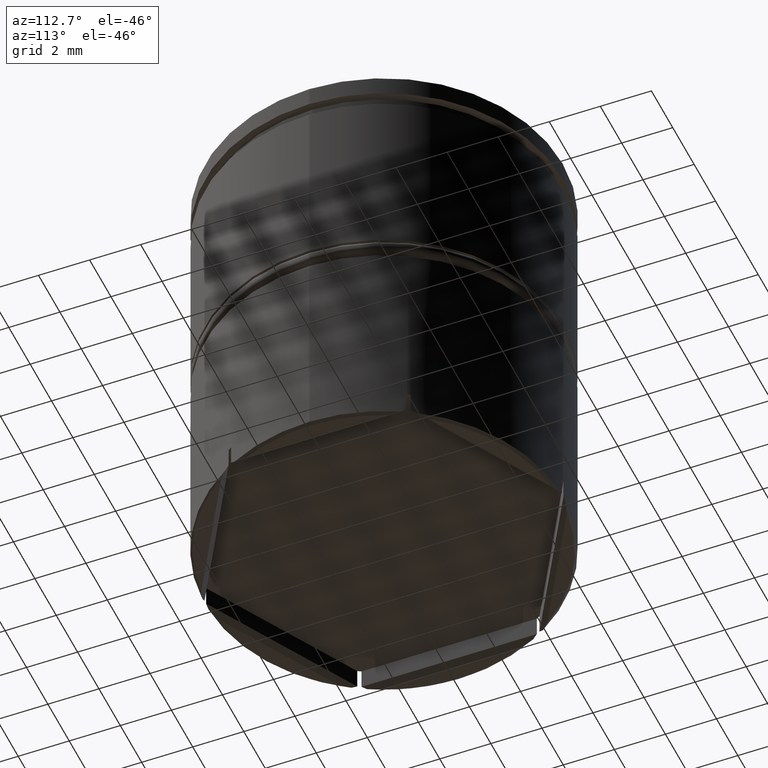
[diagram: clean part render]
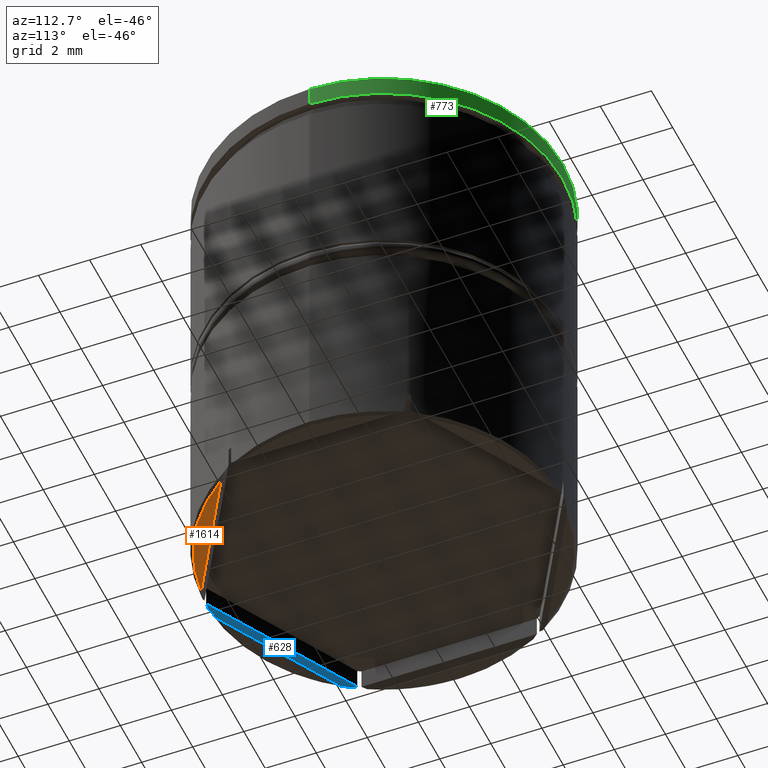
[diagram: same view with three faces highlighted in distinct colors, each labeled with its STEP entity id]
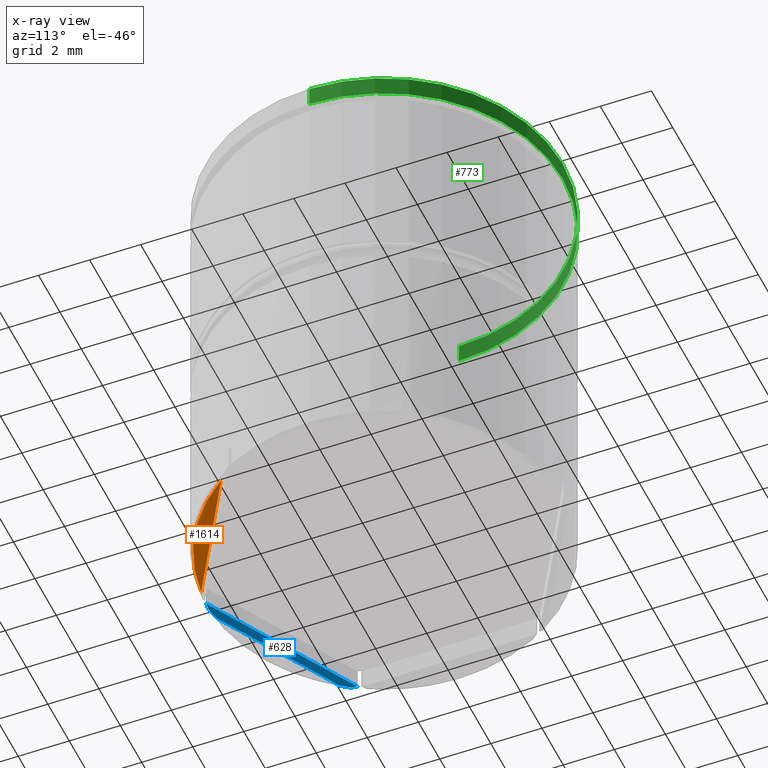
[diagram: x-ray of the same camera — body ghosted, the three highlighted faces saturated]
A machine part, auxiliary view with three faces highlighted in distinct colors.
The next image is the same camera in x-ray (body ghosted, the three faces saturated) — at least one of them is partly hidden behind the body in this view.
Their STEP definitions:

[orange] entity #1614 — the highlighted planar face has unit normal (0, 0, -1).
#26 = EDGE_CURVE ( 'NONE', #227, #977, #1248, .T. ) ;
#98 = DIRECTION ( 'NONE',  ( 0.8660254037844387076, 0.4999999999999998890, 0.000000000000000000 ) ) ;
#108 = DIRECTION ( 'NONE',  ( 0.000000000000000000, 0.000000000000000000, -1.000000000000000000 ) ) ;
#227 = VERTEX_POINT ( 'NONE', #1267 ) ;
#313 = DIRECTION ( 'NONE',  ( -1.000000000000000000, 0.000000000000000000, 0.000000000000000000 ) ) ;
#382 = ORIENTED_EDGE ( 'NONE', *, *, #749, .T. ) ;
#426 = FACE_OUTER_BOUND ( 'NONE', #772, .T. ) ;
#567 = AXIS2_PLACEMENT_3D ( 'NONE', #1581, #108, #1475 ) ;
#749 = EDGE_CURVE ( 'NONE', #977, #227, #1258, .T. ) ;
#772 = EDGE_LOOP ( 'NONE', ( #382, #895 ) ) ;
#838 = DIRECTION ( 'NONE',  ( 0.000000000000000000, 0.000000000000000000, -1.000000000000000000 ) ) ;
#895 = ORIENTED_EDGE ( 'NONE', *, *, #26, .T. ) ;
#977 = VERTEX_POINT ( 'NONE', #1609 ) ;
#1079 = PLANE ( 'NONE',  #567 ) ;
#1205 = CARTESIAN_POINT ( 'NONE',  ( 0.000000000000000000, 0.000000000000000000, -17.50000000000000000 ) ) ;
#1224 = CARTESIAN_POINT ( 'NONE',  ( 5.942848008753788491, -3.843508494182256374, -17.50000000000000000 ) ) ;
#1248 = LINE ( 'NONE', #1224, #1257 ) ;
#1257 = VECTOR ( 'NONE', #98, 1000.000000000000000 ) ;
#1258 = CIRCLE ( 'NONE', #1287, 6.900000000000003908 ) ;
#1267 = CARTESIAN_POINT ( 'NONE',  ( 0.7127884786092059111, -6.863084771788997784, -17.50000000000000000 ) ) ;
#1287 = AXIS2_PLACEMENT_3D ( 'NONE', #1205, #838, #313 ) ;
#1475 = DIRECTION ( 'NONE',  ( -1.000000000000000000, 0.000000000000000000, -0.000000000000000000 ) ) ;
#1581 = CARTESIAN_POINT ( 'NONE',  ( 0.000000000000000000, 7.000000000000000888, -17.50000000000000000 ) ) ;
#1609 = CARTESIAN_POINT ( 'NONE',  ( 5.587211521390793578, -4.048835315894932840, -17.50000000000000000 ) ) ;
#1614 = ADVANCED_FACE ( 'NONE', ( #426 ), #1079, .T. ) ;

[blue] entity #628 — the highlighted planar face has unit normal (0.3536, 0.6124, -0.7071).
#5 = CARTESIAN_POINT ( 'NONE',  ( -6.023634140239850332, -3.565926491746141735, -17.30000000000000071 ) ) ;
#65 = CARTESIAN_POINT ( 'NONE',  ( -0.5706972395900390405, -6.909156228625821683, -17.46885343250046674 ) ) ;
#118 = CARTESIAN_POINT ( 'NONE',  ( -5.587211521390797131, -4.048835315894931064, -17.50000000000000000 ) ) ;
#160 = VERTEX_POINT ( 'NONE', #1404 ) ;
#168 = CARTESIAN_POINT ( 'NONE',  ( -0.2857505441059412510, -6.994165184390713108, -17.39999999999999858 ) ) ;
#185 = EDGE_CURVE ( 'NONE', #1230, #1260, #239, .T. ) ;
#239 = B_SPLINE_CURVE_WITH_KNOTS ( 'NONE', 3,
 ( #792, #651, #1296, #118 ),
 .UNSPECIFIED., .F., .F.,
 ( 4, 4 ),
 ( 0.000000000000000000, 0.0004577591856780710827 ),
 .UNSPECIFIED. ) ;
#258 = CARTESIAN_POINT ( 'NONE',  ( -5.988064803512614276, -3.626010924656295042, -17.33424997690855918 ) ) ;
#270 = VECTOR ( 'NONE', #1134, 1000.000000000000114 ) ;
#285 = CARTESIAN_POINT ( 'NONE',  ( -5.951600521272996325, -3.685556477925193697, -17.36758579760201471 ) ) ;
#286 = CARTESIAN_POINT ( 'NONE',  ( -0.07636585976015554389, -6.999583434424017092, -17.30000000000000071 ) ) ;
#307 = EDGE_CURVE ( 'NONE', #556, #1230, #1289, .T. ) ;
#327 = ORIENTED_EDGE ( 'NONE', *, *, #943, .F. ) ;
#355 = EDGE_CURVE ( 'NONE', #1127, #1456, #1073, .T. ) ;
#358 = LINE ( 'NONE', #1147, #371 ) ;
#371 = VECTOR ( 'NONE', #1254, 1000.000000000000114 ) ;
#385 = CARTESIAN_POINT ( 'NONE',  ( -0.1461851733959461941, -6.998821701677545803, -17.33424997690855562 ) ) ;
#394 = DIRECTION ( 'NONE',  ( 0.3535533905932776721, 0.6123724356958011317, -0.7071067811865398012 ) ) ;
#404 = CARTESIAN_POINT ( 'NONE',  ( 4.363473247675550039E-16, -7.043673284113437738, -17.30000000000000071 ) ) ;
#515 = CARTESIAN_POINT ( 'NONE',  ( -5.914249455894059260, -3.744549822536325401, -17.39999999999999858 ) ) ;
#540 = ORIENTED_EDGE ( 'NONE', *, *, #307, .F. ) ;
#556 = VERTEX_POINT ( 'NONE', #633 ) ;
#557 = B_SPLINE_CURVE_WITH_KNOTS ( 'NONE', 3,
 ( #811, #65, #701, #168 ),
 .UNSPECIFIED., .F., .F.,
 ( 4, 4 ),
 ( 3.252606517456513302E-19, 0.0004577591856780709200 ),
 .UNSPECIFIED. ) ;
#628 = ADVANCED_FACE ( 'NONE', ( #1062 ), #1044, .T. ) ;
#629 = LINE ( 'NONE', #1109, #270 ) ;
#633 = CARTESIAN_POINT ( 'NONE',  ( -6.023634140239850332, -3.565926491746141735, -17.30000000000000071 ) ) ;
#643 = CARTESIAN_POINT ( 'NONE',  ( -0.2857505441059412510, -6.994165184390713108, -17.39999999999999858 ) ) ;
#651 = CARTESIAN_POINT ( 'NONE',  ( -5.807190721710114190, -3.847323924776218096, -17.43547561629891263 ) ) ;
#678 = CARTESIAN_POINT ( 'NONE',  ( -0.2857505441059412510, -6.994165184390713108, -17.39999999999999858 ) ) ;
#701 = CARTESIAN_POINT ( 'NONE',  ( -0.4282848945887998138, -6.952836652010356389, -17.43547561629891263 ) ) ;
#792 = CARTESIAN_POINT ( 'NONE',  ( -5.914249455894059260, -3.744549822536325401, -17.39999999999999858 ) ) ;
#811 = CARTESIAN_POINT ( 'NONE',  ( -0.7127884786092052449, -6.863084771788998673, -17.50000000000000000 ) ) ;
#854 = CARTESIAN_POINT ( 'NONE',  ( -5.914249455894059260, -3.744549822536325401, -17.39999999999999858 ) ) ;
#925 = DIRECTION ( 'NONE',  ( 0.8660254037844385966, -0.5000000000000001110, 0.000000000000000000 ) ) ;
#926 = CARTESIAN_POINT ( 'NONE',  ( -0.2159852763290208699, -6.997015483561718874, -17.36758579760201471 ) ) ;
#943 = EDGE_CURVE ( 'NONE', #1260, #160, #629, .T. ) ;
#956 = EDGE_LOOP ( 'NONE', ( #1451, #327, #1357, #540, #1087, #1610 ) ) ;
#1044 = PLANE ( 'NONE',  #1208 ) ;
#1062 = FACE_OUTER_BOUND ( 'NONE', #956, .T. ) ;
#1073 =( BOUNDED_CURVE ( )  B_SPLINE_CURVE ( 3, ( #643, #926, #385, #1300 ),
 .UNSPECIFIED., .F., .T. ) 
 B_SPLINE_CURVE_WITH_KNOTS ( ( 4, 4 ),
 ( 3.624358576915527319, 3.654281804241773290 ),
 .UNSPECIFIED. ) 
 CURVE ( )  GEOMETRIC_REPRESENTATION_ITEM ( )  RATIONAL_B_SPLINE_CURVE ( ( 1.000000000000000000, 0.9999253847640983128, 0.9999253847640983128, 1.000000000000000000 ) ) 
 REPRESENTATION_ITEM ( '' )  );
#1087 = ORIENTED_EDGE ( 'NONE', *, *, #1337, .F. ) ;
#1109 = CARTESIAN_POINT ( 'NONE',  ( -0.3571519912462118862, -7.068411593501673806, -17.50000000000000000 ) ) ;
#1127 = VERTEX_POINT ( 'NONE', #678 ) ;
#1134 = DIRECTION ( 'NONE',  ( 0.8660254037844385966, -0.5000000000000001110, 0.000000000000000000 ) ) ;
#1147 = CARTESIAN_POINT ( 'NONE',  ( -5.842848008753790623, -3.670303413425367367, -17.30000000000000071 ) ) ;
#1208 = AXIS2_PLACEMENT_3D ( 'NONE', #404, #394, #925 ) ;
#1230 = VERTEX_POINT ( 'NONE', #854 ) ;
#1254 = DIRECTION ( 'NONE',  ( -0.8660254037844385966, 0.5000000000000001110, 0.000000000000000000 ) ) ;
#1260 = VERTEX_POINT ( 'NONE', #1568 ) ;
#1289 =( BOUNDED_CURVE ( )  B_SPLINE_CURVE ( 3, ( #5, #258, #285, #515 ),
 .UNSPECIFIED., .F., .T. ) 
 B_SPLINE_CURVE_WITH_KNOTS ( ( 4, 4 ),
 ( 2.628903502937813830, 2.658826730264059357 ),
 .UNSPECIFIED. ) 
 CURVE ( )  GEOMETRIC_REPRESENTATION_ITEM ( )  RATIONAL_B_SPLINE_CURVE ( ( 1.000000000000000000, 0.9999253847640983128, 0.9999253847640983128, 1.000000000000000000 ) ) 
 REPRESENTATION_ITEM ( '' )  );
#1296 = CARTESIAN_POINT ( 'NONE',  ( -5.698156192910427187, -3.948816421667537657, -17.46885343250046674 ) ) ;
#1300 = CARTESIAN_POINT ( 'NONE',  ( -0.07636585976015554389, -6.999583434424017092, -17.30000000000000071 ) ) ;
#1337 = EDGE_CURVE ( 'NONE', #1456, #556, #358, .T. ) ;
#1357 = ORIENTED_EDGE ( 'NONE', *, *, #185, .F. ) ;
#1404 = CARTESIAN_POINT ( 'NONE',  ( -0.7127884786092052449, -6.863084771788998673, -17.50000000000000000 ) ) ;
#1451 = ORIENTED_EDGE ( 'NONE', *, *, #1595, .F. ) ;
#1456 = VERTEX_POINT ( 'NONE', #286 ) ;
#1568 = CARTESIAN_POINT ( 'NONE',  ( -5.587211521390797131, -4.048835315894931064, -17.50000000000000000 ) ) ;
#1595 = EDGE_CURVE ( 'NONE', #160, #1127, #557, .T. ) ;
#1610 = ORIENTED_EDGE ( 'NONE', *, *, #355, .F. ) ;

[green] entity #773 — the highlighted cylindrical surface (partial cylindrical patch) has radius 7 mm, axis along (-0, -0, 1).
#85 = ORIENTED_EDGE ( 'NONE', *, *, #973, .T. ) ;
#91 = CIRCLE ( 'NONE', #760, 7.000000000000000888 ) ;
#127 = CARTESIAN_POINT ( 'NONE',  ( 0.000000000000000000, 0.000000000000000000, -0.1000000000000011297 ) ) ;
#203 = DIRECTION ( 'NONE',  ( -0.000000000000000000, -0.000000000000000000, 1.000000000000000000 ) ) ;
#259 = CARTESIAN_POINT ( 'NONE',  ( 0.000000000000000000, 0.000000000000000000, -0.8749999999999998890 ) ) ;
#295 = VECTOR ( 'NONE', #897, 1000.000000000000000 ) ;
#332 = VERTEX_POINT ( 'NONE', #395 ) ;
#388 = EDGE_CURVE ( 'NONE', #685, #1312, #495, .T. ) ;
#395 = CARTESIAN_POINT ( 'NONE',  ( -7.000000000000000888, 8.572527594031474176E-16, -0.1000000000000011297 ) ) ;
#399 = AXIS2_PLACEMENT_3D ( 'NONE', #127, #486, #976 ) ;
#486 = DIRECTION ( 'NONE',  ( 0.000000000000000000, 0.000000000000000000, -1.000000000000000000 ) ) ;
#495 = LINE ( 'NONE', #1395, #857 ) ;
#507 = DIRECTION ( 'NONE',  ( -0.000000000000000000, -0.000000000000000000, 1.000000000000000000 ) ) ;
#518 = EDGE_CURVE ( 'NONE', #972, #332, #983, .T. ) ;
#642 = CARTESIAN_POINT ( 'NONE',  ( 7.000000000000000888, 0.000000000000000000, -0.8749999999999998890 ) ) ;
#685 = VERTEX_POINT ( 'NONE', #642 ) ;
#704 = CARTESIAN_POINT ( 'NONE',  ( 0.000000000000000000, 0.000000000000000000, 0.000000000000000000 ) ) ;
#709 = ORIENTED_EDGE ( 'NONE', *, *, #518, .T. ) ;
#725 = ORIENTED_EDGE ( 'NONE', *, *, #1323, .T. ) ;
#757 = AXIS2_PLACEMENT_3D ( 'NONE', #704, #203, #1213 ) ;
#760 = AXIS2_PLACEMENT_3D ( 'NONE', #259, #507, #899 ) ;
#773 = ADVANCED_FACE ( 'NONE', ( #1453 ), #830, .T. ) ;
#830 = CYLINDRICAL_SURFACE ( 'NONE', #757, 7.000000000000000888 ) ;
#857 = VECTOR ( 'NONE', #1008, 1000.000000000000000 ) ;
#897 = DIRECTION ( 'NONE',  ( -0.000000000000000000, -0.000000000000000000, 1.000000000000000000 ) ) ;
#899 = DIRECTION ( 'NONE',  ( 1.000000000000000000, 0.000000000000000000, 0.000000000000000000 ) ) ;
#972 = VERTEX_POINT ( 'NONE', #1269 ) ;
#973 = EDGE_CURVE ( 'NONE', #332, #1312, #992, .T. ) ;
#976 = DIRECTION ( 'NONE',  ( 1.000000000000000000, 0.000000000000000000, 0.000000000000000000 ) ) ;
#983 = LINE ( 'NONE', #1120, #295 ) ;
#992 = CIRCLE ( 'NONE', #399, 7.000000000000000888 ) ;
#1003 = CARTESIAN_POINT ( 'NONE',  ( 7.000000000000000888, 0.000000000000000000, -0.1000000000000011297 ) ) ;
#1008 = DIRECTION ( 'NONE',  ( -0.000000000000000000, -0.000000000000000000, 1.000000000000000000 ) ) ;
#1120 = CARTESIAN_POINT ( 'NONE',  ( -7.000000000000000888, 8.572527594031474176E-16, 0.000000000000000000 ) ) ;
#1213 = DIRECTION ( 'NONE',  ( 1.000000000000000000, 0.000000000000000000, 0.000000000000000000 ) ) ;
#1245 = ORIENTED_EDGE ( 'NONE', *, *, #388, .F. ) ;
#1269 = CARTESIAN_POINT ( 'NONE',  ( -7.000000000000000888, 8.572527594031474176E-16, -0.8749999999999998890 ) ) ;
#1312 = VERTEX_POINT ( 'NONE', #1003 ) ;
#1323 = EDGE_CURVE ( 'NONE', #685, #972, #91, .T. ) ;
#1395 = CARTESIAN_POINT ( 'NONE',  ( 7.000000000000000888, 0.000000000000000000, 0.000000000000000000 ) ) ;
#1453 = FACE_OUTER_BOUND ( 'NONE', #1579, .T. ) ;
#1579 = EDGE_LOOP ( 'NONE', ( #725, #709, #85, #1245 ) ) ;